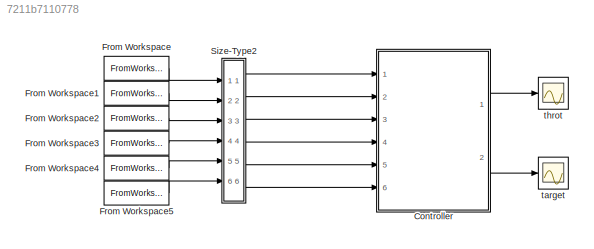
MODEL slx_7211b7110778
KIND model
CONFIG AbsTol = auto
CONFIG EnableMultiTasking = on
CONFIG FixedStep = 0.001
CONFIG MaxStep = auto
CONFIG MinStep = auto
CONFIG RelTol = 1e-3
CONFIG SampleTimeConstraint = Unconstrained
CONFIG Solver = ode3
CONFIG SolverName = ode3
CONFIG StartTime = 0.0
CONFIG StopTime = SimTime
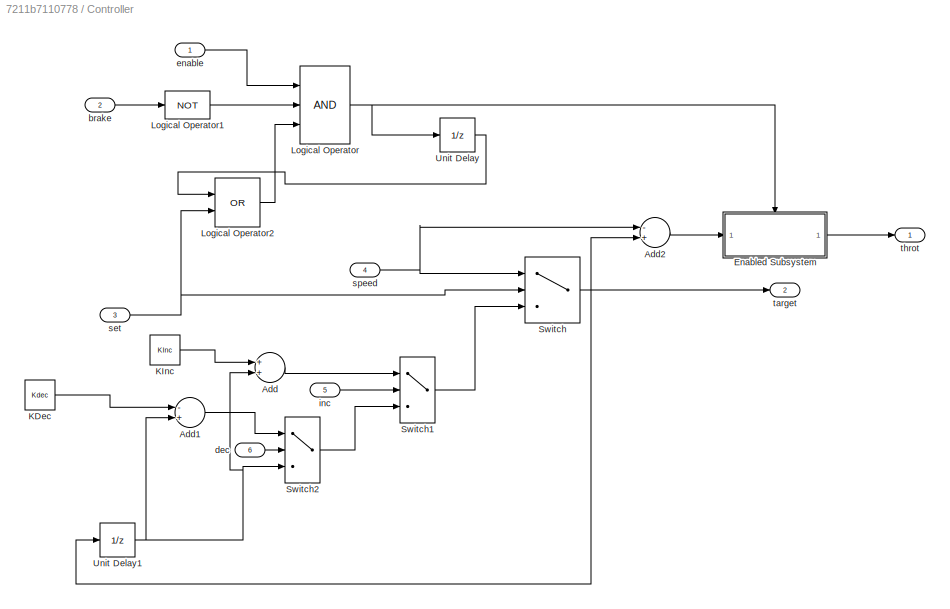
BLOCK [SubSystem] Controller
  Ports = [6, 2]
  RequestExecContextInheritance = off
  Variant = off
BLOCK [Sum] Controller/Add
  InputSameDT = off
  OutDataTypeStr = Inherit: Inherit via internal rule
  Ports = [2, 1]
  SaturateOnIntegerOverflow = off
BLOCK [Sum] Controller/Add1
  InputSameDT = off
  Inputs = -+
  OutDataTypeStr = Inherit: Inherit via internal rule
  Ports = [2, 1]
  SaturateOnIntegerOverflow = off
BLOCK [Sum] Controller/Add2
  InputSameDT = off
  Inputs = -+
  OutDataTypeStr = Inherit: Inherit via internal rule
  Ports = [2, 1]
  SaturateOnIntegerOverflow = off
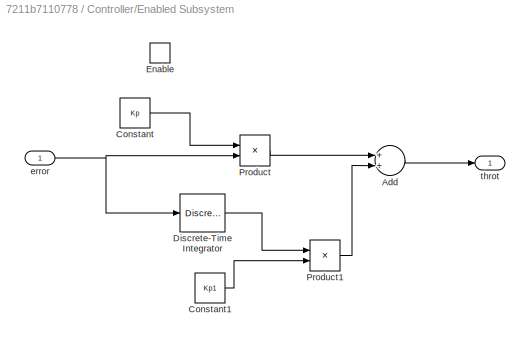
BLOCK [SubSystem] Controller/Enabled Subsystem
  Ports = [1, 1, 1]
  RequestExecContextInheritance = off
  TreatAsAtomicUnit = on
  Variant = off
BLOCK [Sum] Controller/Enabled Subsystem/Add
  InputSameDT = off
  OutDataTypeStr = Inherit: Inherit via internal rule
  Ports = [2, 1]
  SaturateOnIntegerOverflow = off
BLOCK [Constant] Controller/Enabled Subsystem/Constant
  Value = Kp
BLOCK [Constant] Controller/Enabled Subsystem/Constant1
  Value = Kp1
BLOCK [DiscreteIntegrator] Controller/Enabled Subsystem/Discrete-Time Integrator
  ICPrevOutput = DiscIntNeverNeededParam
  ICPrevScaledInput = DiscIntNeverNeededParam
  Ports = [1, 1]
  gainval = Ki
BLOCK [EnablePort] Controller/Enabled Subsystem/Enable
  Ports = []
BLOCK [Product] Controller/Enabled Subsystem/Product
  InputSameDT = off
  OutDataTypeStr = Inherit: Inherit via internal rule
  Ports = [2, 1]
  RndMeth = Floor
  SaturateOnIntegerOverflow = off
BLOCK [Product] Controller/Enabled Subsystem/Product1
  InputSameDT = off
  OutDataTypeStr = Inherit: Inherit via internal rule
  Ports = [2, 1]
  RndMeth = Floor
  SaturateOnIntegerOverflow = off
BLOCK [Inport] Controller/Enabled Subsystem/error
  IconDisplay = Port number
BLOCK [Outport] Controller/Enabled Subsystem/throt
  IconDisplay = Port number
BLOCK [Constant] Controller/KDec
  Value = Kdec
BLOCK [Constant] Controller/KInc
  Value = KInc
BLOCK [Logic] Controller/Logical Operator
  AllPortsSameDT = off
  Inputs = 3
  OutDataTypeStr = boolean
  Ports = [3, 1]
BLOCK [Logic] Controller/Logical Operator1
  AllPortsSameDT = off
  Inputs = 3
  Operator = NOT
  OutDataTypeStr = boolean
  Ports = [1, 1]
BLOCK [Logic] Controller/Logical Operator2
  AllPortsSameDT = off
  Operator = OR
  OutDataTypeStr = boolean
  Ports = [2, 1]
BLOCK [Switch] Controller/Switch
  InputSameDT = off
  SaturateOnIntegerOverflow = off
BLOCK [Switch] Controller/Switch1
  InputSameDT = off
  SaturateOnIntegerOverflow = off
BLOCK [Switch] Controller/Switch2
  InputSameDT = off
  SaturateOnIntegerOverflow = off
BLOCK [UnitDelay] Controller/Unit Delay
  InitialCondition = 1
  InputProcessing = Elements as channels (sample based)
  SampleTime = -1
BLOCK [UnitDelay] Controller/Unit Delay1
  InputProcessing = Elements as channels (sample based)
  SampleTime = -1
BLOCK [Inport] Controller/brake
  IconDisplay = Port number
  Port = 2
BLOCK [Inport] Controller/dec
  IconDisplay = Port number
  Port = 6
BLOCK [Inport] Controller/enable
  IconDisplay = Port number
BLOCK [Inport] Controller/inc
  IconDisplay = Port number
  Port = 5
BLOCK [Inport] Controller/set
  IconDisplay = Port number
  Port = 3
BLOCK [Inport] Controller/speed
  IconDisplay = Port number
  Port = 4
BLOCK [Outport] Controller/target
  IconDisplay = Port number
  Port = 2
BLOCK [Outport] Controller/throt
  IconDisplay = Port number
BLOCK [FromWorkspace] From Workspace
  SampleTime = 0
  VariableName = Enable
  ZeroCross = on
BLOCK [FromWorkspace] From Workspace1
  SampleTime = 0
  VariableName = Brake
  ZeroCross = on
BLOCK [FromWorkspace] From Workspace2
  SampleTime = 0
  VariableName = Set
  ZeroCross = on
BLOCK [FromWorkspace] From Workspace3
  SampleTime = 0
  VariableName = Speed
  ZeroCross = on
BLOCK [FromWorkspace] From Workspace4
  SampleTime = 0
  VariableName = Inc
  ZeroCross = on
BLOCK [FromWorkspace] From Workspace5
  SampleTime = 0
  VariableName = Dec
  ZeroCross = on
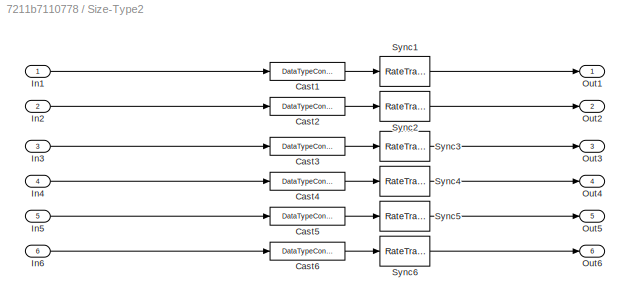
BLOCK [SubSystem] Size-Type2
  Ports = [6, 6]
  RequestExecContextInheritance = off
  Variant = off
BLOCK [DataTypeConversion] Size-Type2/Cast1
  OutDataTypeStr = boolean
BLOCK [DataTypeConversion] Size-Type2/Cast2
  OutDataTypeStr = boolean
BLOCK [DataTypeConversion] Size-Type2/Cast3
  OutDataTypeStr = boolean
BLOCK [DataTypeConversion] Size-Type2/Cast4
  OutDataTypeStr = double
BLOCK [DataTypeConversion] Size-Type2/Cast5
  OutDataTypeStr = double
BLOCK [DataTypeConversion] Size-Type2/Cast6
  OutDataTypeStr = double
BLOCK [Inport] Size-Type2/In1
  IconDisplay = Port number
BLOCK [Inport] Size-Type2/In2
  IconDisplay = Port number
  Port = 2
BLOCK [Inport] Size-Type2/In3
  IconDisplay = Port number
  Port = 3
BLOCK [Inport] Size-Type2/In4
  IconDisplay = Port number
  Port = 4
BLOCK [Inport] Size-Type2/In5
  IconDisplay = Port number
  Port = 5
BLOCK [Inport] Size-Type2/In6
  IconDisplay = Port number
  Port = 6
BLOCK [Outport] Size-Type2/Out1
  IconDisplay = Port number
BLOCK [Outport] Size-Type2/Out2
  IconDisplay = Port number
  Port = 2
BLOCK [Outport] Size-Type2/Out3
  IconDisplay = Port number
  Port = 3
BLOCK [Outport] Size-Type2/Out4
  IconDisplay = Port number
  Port = 4
BLOCK [Outport] Size-Type2/Out5
  IconDisplay = Port number
  Port = 5
BLOCK [Outport] Size-Type2/Out6
  IconDisplay = Port number
  Port = 6
BLOCK [RateTransition] Size-Type2/Sync1
  OutPortSampleTime = [1,0]
BLOCK [RateTransition] Size-Type2/Sync2
  OutPortSampleTime = [1,0]
BLOCK [RateTransition] Size-Type2/Sync3
  OutPortSampleTime = [1,0]
BLOCK [RateTransition] Size-Type2/Sync4
  OutPortSampleTime = [1,0]
BLOCK [RateTransition] Size-Type2/Sync5
  OutPortSampleTime = [1,0]
BLOCK [RateTransition] Size-Type2/Sync6
  OutPortSampleTime = [1,0]
BLOCK [Scope] target
  NumInputPorts = 1
  Ports = [1]
  ScopeSpecificationString = C++SS(StrPVP('Location','[744, 271, 1068, 510]'),StrPVP('Open','off'),MxPVP('AxesTitles',53,'struct(''axes1'',''%<SignalLabel>'')'),MxPVP('ScopeGraphics',56,'struct(''FigureColor'',''[0.5 0.5 0.5]'',''AxesColor'',''[0 0 0]'',''AxesTickColor'',''[1 1 1]'',''LineColors'',''[1 1 0;1 0 1;0 1 1;1 0 0;0 1 0;0 0 1]'',''LineStyles'',''-|-|-|-|-|-'',''LineWidths'',''[0.5 0.5 0.5 0.5 0.5 0.5]'',''MarkerStyl...<+298ch>
BLOCK [Scope] throt
  NumInputPorts = 1
  Ports = [1]
  ScopeSpecificationString = C++SS(StrPVP('Location','[377, 277, 701, 516]'),StrPVP('Open','off'),MxPVP('AxesTitles',53,'struct(''axes1'',''%<SignalLabel>'')'),MxPVP('ScopeGraphics',56,'struct(''FigureColor'',''[0.5 0.5 0.5]'',''AxesColor'',''[0 0 0]'',''AxesTickColor'',''[1 1 1]'',''LineColors'',''[1 1 0;1 0 1;0 1 1;1 0 0;0 1 0;0 0 1]'',''LineStyles'',''-|-|-|-|-|-'',''LineWidths'',''[0.5 0.5 0.5 0.5 0.5 0.5]'',''MarkerStyle...<+240ch>
LINE Controller/Add1:1 -> Controller/Switch2:1
LINE Controller/Add2:1 -> Controller/Enabled Subsystem:1
LINE Controller/Add:1 -> Controller/Switch1:1
LINE Controller/Enabled Subsystem/Add:1 -> Controller/Enabled Subsystem/throt:1
LINE Controller/Enabled Subsystem/Constant1:1 -> Controller/Enabled Subsystem/Product1:2
LINE Controller/Enabled Subsystem/Constant:1 -> Controller/Enabled Subsystem/Product:1
LINE Controller/Enabled Subsystem/Discrete-Time Integrator:1 -> Controller/Enabled Subsystem/Product1:1
LINE Controller/Enabled Subsystem/Product1:1 -> Controller/Enabled Subsystem/Add:2
LINE Controller/Enabled Subsystem/Product:1 -> Controller/Enabled Subsystem/Add:1
NET Controller/Enabled Subsystem/error:1 -> Controller/Enabled Subsystem/Discrete-Time Integrator:1, Controller/Enabled Subsystem/Product:2
LINE Controller/Enabled Subsystem:1 -> Controller/throt:1
LINE Controller/KDec:1 -> Controller/Add1:1
LINE Controller/KInc:1 -> Controller/Add:1
LINE Controller/Logical Operator1:1 -> Controller/Logical Operator:2
LINE Controller/Logical Operator2:1 -> Controller/Logical Operator:3
NET Controller/Logical Operator:1 -> Controller/Enabled Subsystem:enable, Controller/Unit Delay:1
LINE Controller/Switch1:1 -> Controller/Switch:3
LINE Controller/Switch2:1 -> Controller/Switch1:3
NET Controller/Switch:1 -> Controller/Add2:2, Controller/Unit Delay1:1, Controller/target:1
NET Controller/Unit Delay1:1 -> Controller/Add1:2, Controller/Add:2, Controller/Switch2:3
LINE Controller/Unit Delay:1 -> Controller/Logical Operator2:1
LINE Controller/brake:1 -> Controller/Logical Operator1:1
LINE Controller/dec:1 -> Controller/Switch2:2
LINE Controller/enable:1 -> Controller/Logical Operator:1
LINE Controller/inc:1 -> Controller/Switch1:2
NET Controller/set:1 -> Controller/Logical Operator2:2, Controller/Switch:2
NET Controller/speed:1 -> Controller/Add2:1, Controller/Switch:1
LINE Controller:1 -> throt:1
LINE Controller:2 -> target:1
LINE From Workspace1:1 -> Size-Type2:2
LINE From Workspace2:1 -> Size-Type2:3
LINE From Workspace3:1 -> Size-Type2:4
LINE From Workspace4:1 -> Size-Type2:5
LINE From Workspace5:1 -> Size-Type2:6
LINE From Workspace:1 -> Size-Type2:1
LINE Size-Type2/Cast1:1 -> Size-Type2/Sync1:1
LINE Size-Type2/Cast2:1 -> Size-Type2/Sync2:1
LINE Size-Type2/Cast3:1 -> Size-Type2/Sync3:1
LINE Size-Type2/Cast4:1 -> Size-Type2/Sync4:1
LINE Size-Type2/Cast5:1 -> Size-Type2/Sync5:1
LINE Size-Type2/Cast6:1 -> Size-Type2/Sync6:1
LINE Size-Type2/In1:1 -> Size-Type2/Cast1:1
LINE Size-Type2/In2:1 -> Size-Type2/Cast2:1
LINE Size-Type2/In3:1 -> Size-Type2/Cast3:1
LINE Size-Type2/In4:1 -> Size-Type2/Cast4:1
LINE Size-Type2/In5:1 -> Size-Type2/Cast5:1
LINE Size-Type2/In6:1 -> Size-Type2/Cast6:1
LINE Size-Type2/Sync1:1 -> Size-Type2/Out1:1
LINE Size-Type2/Sync2:1 -> Size-Type2/Out2:1
LINE Size-Type2/Sync3:1 -> Size-Type2/Out3:1
LINE Size-Type2/Sync4:1 -> Size-Type2/Out4:1
LINE Size-Type2/Sync5:1 -> Size-Type2/Out5:1
LINE Size-Type2/Sync6:1 -> Size-Type2/Out6:1
LINE Size-Type2:1 -> Controller:1
LINE Size-Type2:2 -> Controller:2
LINE Size-Type2:3 -> Controller:3
LINE Size-Type2:4 -> Controller:4
LINE Size-Type2:5 -> Controller:5
LINE Size-Type2:6 -> Controller:6
note: NET lines group one-source signal fan-out (src -> all destinations, sorted); 1:1 wires keep LINE
